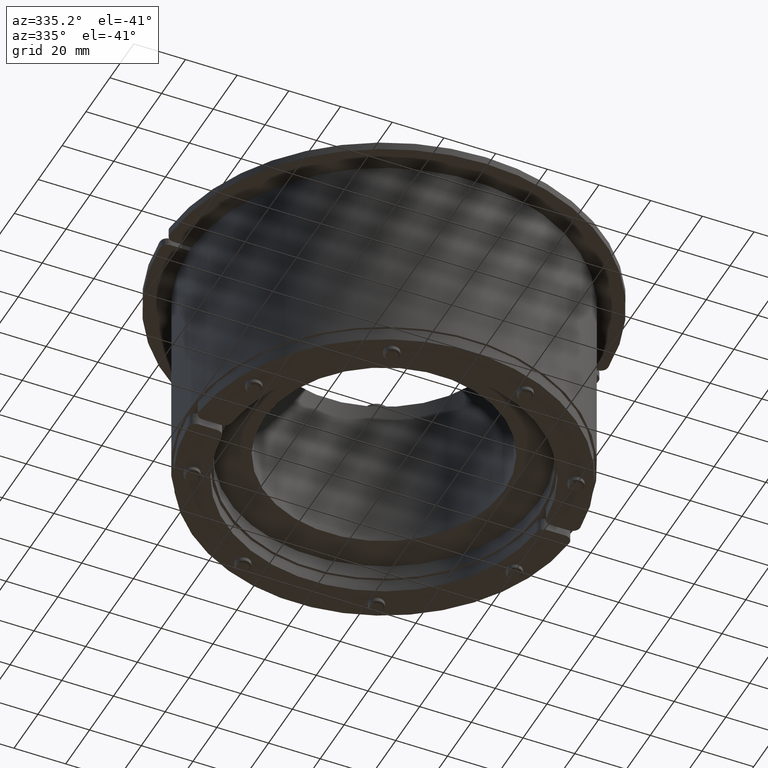
[diagram: clean part render]
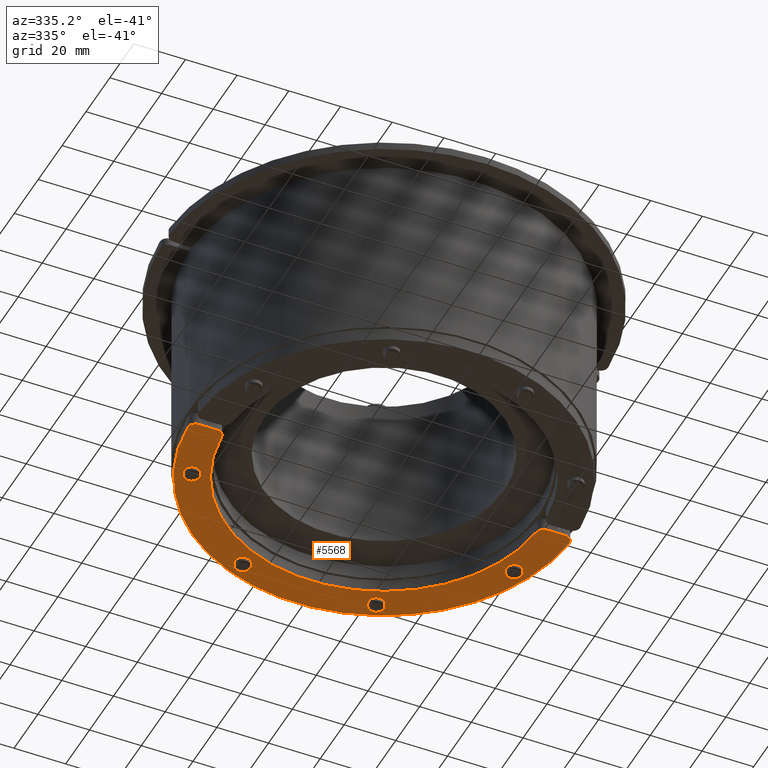
[diagram: same view with one face highlighted and labeled with its STEP entity id]
A machine part, auxiliary view. The second image highlights one B-rep face of the part: STEP entity #5568.
In plain terms, the highlighted planar face has unit normal (0, 0, 1).
Its self-contained STEP definition (entity closure, byte-faithful):
#129=FACE_BOUND('',#1011,.T.);
#130=FACE_BOUND('',#1012,.T.);
#131=FACE_BOUND('',#1013,.T.);
#132=FACE_BOUND('',#1014,.T.);
#263=PLANE('',#6267);
#679=FACE_OUTER_BOUND('',#1010,.T.);
#1010=EDGE_LOOP('',(#4790,#4791,#4792,#4793,#4794,#4795,#4796,#4797));
#1011=EDGE_LOOP('',(#4798));
#1012=EDGE_LOOP('',(#4799));
#1013=EDGE_LOOP('',(#4800));
#1014=EDGE_LOOP('',(#4801));
#1320=LINE('',#10257,#1612);
#1323=LINE('',#10267,#1615);
#1612=VECTOR('',#7911,10.);
#1615=VECTOR('',#7920,10.);
#1985=CIRCLE('',#6238,3.00000000000001);
#1989=CIRCLE('',#6245,3.00000000000001);
#1993=CIRCLE('',#6252,3.00000000000001);
#1997=CIRCLE('',#6259,3.00000000000001);
#2000=CIRCLE('',#6265,3.);
#2001=CIRCLE('',#6268,74.);
#2002=CIRCLE('',#6269,3.);
#2003=CIRCLE('',#6270,3.);
#2004=CIRCLE('',#6271,61.);
#2005=CIRCLE('',#6272,3.);
#2492=VERTEX_POINT('',#10199);
#2496=VERTEX_POINT('',#10212);
#2500=VERTEX_POINT('',#10225);
#2504=VERTEX_POINT('',#10238);
#2508=VERTEX_POINT('',#10250);
#2509=VERTEX_POINT('',#10252);
#2510=VERTEX_POINT('',#10256);
#2512=VERTEX_POINT('',#10262);
#2513=VERTEX_POINT('',#10264);
#2514=VERTEX_POINT('',#10266);
#2515=VERTEX_POINT('',#10268);
#2516=VERTEX_POINT('',#10270);
#3254=EDGE_CURVE('',#2492,#2492,#1985,.T.);
#3260=EDGE_CURVE('',#2496,#2496,#1989,.T.);
#3266=EDGE_CURVE('',#2500,#2500,#1993,.T.);
#3272=EDGE_CURVE('',#2504,#2504,#1997,.T.);
#3277=EDGE_CURVE('',#2508,#2509,#2000,.T.);
#3279=EDGE_CURVE('',#2510,#2509,#1320,.T.);
#3282=EDGE_CURVE('',#2508,#2512,#2001,.T.);
#3283=EDGE_CURVE('',#2513,#2512,#2002,.T.);
#3284=EDGE_CURVE('',#2513,#2514,#1323,.T.);
#3285=EDGE_CURVE('',#2515,#2514,#2003,.T.);
#3286=EDGE_CURVE('',#2515,#2516,#2004,.T.);
#3287=EDGE_CURVE('',#2510,#2516,#2005,.T.);
#4790=ORIENTED_EDGE('',*,*,#3277,.F.);
#4791=ORIENTED_EDGE('',*,*,#3282,.T.);
#4792=ORIENTED_EDGE('',*,*,#3283,.F.);
#4793=ORIENTED_EDGE('',*,*,#3284,.T.);
#4794=ORIENTED_EDGE('',*,*,#3285,.F.);
#4795=ORIENTED_EDGE('',*,*,#3286,.T.);
#4796=ORIENTED_EDGE('',*,*,#3287,.F.);
#4797=ORIENTED_EDGE('',*,*,#3279,.T.);
#4798=ORIENTED_EDGE('',*,*,#3254,.T.);
#4799=ORIENTED_EDGE('',*,*,#3260,.T.);
#4800=ORIENTED_EDGE('',*,*,#3266,.T.);
#4801=ORIENTED_EDGE('',*,*,#3272,.T.);
#5568=ADVANCED_FACE('',(#679,#129,#130,#131,#132),#263,.F.);
#6238=AXIS2_PLACEMENT_3D('',#10201,#7844,#7845);
#6245=AXIS2_PLACEMENT_3D('',#10214,#7860,#7861);
#6252=AXIS2_PLACEMENT_3D('',#10227,#7876,#7877);
#6259=AXIS2_PLACEMENT_3D('',#10240,#7892,#7893);
#6265=AXIS2_PLACEMENT_3D('',#10253,#7906,#7907);
#6267=AXIS2_PLACEMENT_3D('',#10261,#7914,#7915);
#6268=AXIS2_PLACEMENT_3D('',#10263,#7916,#7917);
#6269=AXIS2_PLACEMENT_3D('',#10265,#7918,#7919);
#6270=AXIS2_PLACEMENT_3D('',#10269,#7921,#7922);
#6271=AXIS2_PLACEMENT_3D('',#10271,#7923,#7924);
#6272=AXIS2_PLACEMENT_3D('',#10272,#7925,#7926);
#7844=DIRECTION('center_axis',(0.,0.,1.));
#7845=DIRECTION('ref_axis',(0.130526192220051,0.99144486137381,2.09654593333939E-17));
#7860=DIRECTION('center_axis',(0.,0.,1.));
#7861=DIRECTION('ref_axis',(-0.60876142900872,0.793353340291235,2.09654593333939E-17));
#7876=DIRECTION('center_axis',(0.,0.,1.));
#7877=DIRECTION('ref_axis',(-0.99144486137381,0.130526192220052,2.09654593333939E-17));
#7892=DIRECTION('center_axis',(0.,0.,1.));
#7893=DIRECTION('ref_axis',(-0.793353340291235,-0.608761429008721,2.09654593333939E-17));
#7906=DIRECTION('center_axis',(0.,0.,1.));
#7907=DIRECTION('ref_axis',(-0.729170858472189,-0.684331687966392,0.));
#7911=DIRECTION('',(-1.,0.,0.));
#7914=DIRECTION('center_axis',(0.,0.,1.));
#7915=DIRECTION('ref_axis',(1.,0.,0.));
#7916=DIRECTION('center_axis',(0.,0.,-1.));
#7917=DIRECTION('ref_axis',(0.999794536964055,0.0202702702702703,0.));
#7918=DIRECTION('center_axis',(0.,0.,1.));
#7919=DIRECTION('ref_axis',(0.72917085847219,-0.684331687966391,0.));
#7920=DIRECTION('',(-1.,0.,0.));
#7921=DIRECTION('center_axis',(0.,0.,1.));
#7922=DIRECTION('ref_axis',(-0.681794507164734,-0.731543744419975,0.));
#7923=DIRECTION('center_axis',(0.,0.,1.));
#7924=DIRECTION('ref_axis',(-0.999697616200858,-0.0245901639344263,0.));
#7925=DIRECTION('center_axis',(0.,0.,1.));
#7926=DIRECTION('ref_axis',(0.68179450716473,-0.731543744419979,0.));
#10199=CARTESIAN_POINT('',(61.9702898678517,22.8567971005221,-79.));
#10201=CARTESIAN_POINT('Origin',(62.3618684445119,25.8311316846435,-79.));
#10212=CARTESIAN_POINT('',(27.6574159716698,59.9818084236381,-79.));
#10214=CARTESIAN_POINT('Origin',(25.8311316846436,62.3618684445118,-79.));
#10225=CARTESIAN_POINT('',(-22.8567971005221,61.9702898678517,-79.));
#10227=CARTESIAN_POINT('Origin',(-25.8311316846435,62.3618684445119,-79.));
#10238=CARTESIAN_POINT('',(-59.9818084236381,27.6574159716697,-79.));
#10240=CARTESIAN_POINT('Origin',(-62.3618684445118,25.8311316846436,-79.));
#10250=CARTESIAN_POINT('',(-73.851219210338,4.69014084507044,-79.));
#10252=CARTESIAN_POINT('',(-70.857250863973,1.5,-79.));
#10253=CARTESIAN_POINT('Origin',(-70.857250863973,4.50000000000001,-79.));
#10256=CARTESIAN_POINT('',(-63.8416008571214,1.5,-79.));
#10257=CARTESIAN_POINT('',(-73.9847957353401,1.5,-79.));
#10261=CARTESIAN_POINT('Origin',(-3.92313784439032E-16,40.728956662402,
-79.));
#10262=CARTESIAN_POINT('',(73.851219210338,4.69014084507043,-79.));
#10263=CARTESIAN_POINT('Origin',(0.,0.,-79.));
#10264=CARTESIAN_POINT('',(70.857250863973,1.5,-79.));
#10265=CARTESIAN_POINT('Origin',(70.857250863973,4.5,-79.));
#10266=CARTESIAN_POINT('',(63.8416008571214,1.5,-79.));
#10267=CARTESIAN_POINT('',(60.9815545882524,1.5,-79.));
#10268=CARTESIAN_POINT('',(60.8490258169438,4.28906249999999,-79.));
#10269=CARTESIAN_POINT('Origin',(63.8416008571214,4.49999999999999,-79.));
#10270=CARTESIAN_POINT('',(-60.8490258169438,4.28906250000001,-79.));
#10271=CARTESIAN_POINT('Origin',(0.,0.,-79.));
#10272=CARTESIAN_POINT('Origin',(-63.8416008571214,4.50000000000001,-79.));